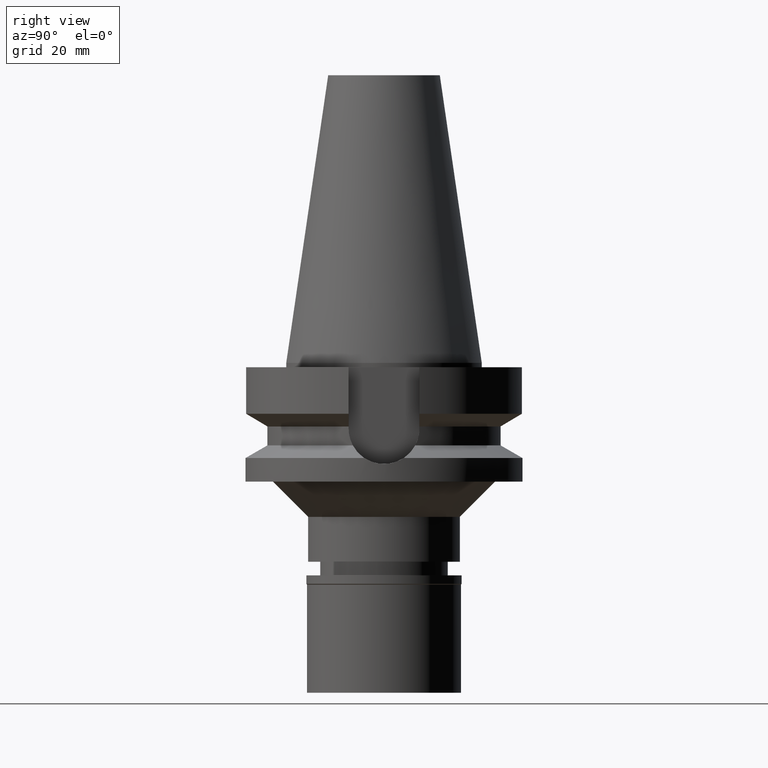
[diagram: clean part render]
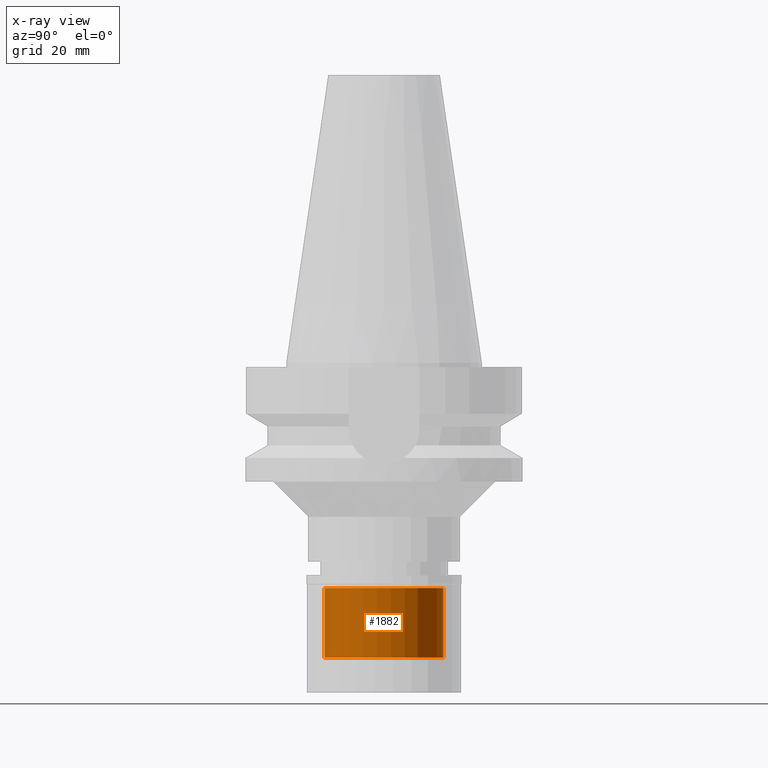
[diagram: x-ray — body ghosted, one internal face saturated and labeled with its STEP entity id]
A machine part, right view, then the same camera in x-ray: the body is ghosted and one INTERNAL B-rep face — a face not visible from any outside direction — is saturated and labeled: STEP entity #1882.
In plain terms, the highlighted cylindrical surface (partial cylindrical patch) has radius 13.5 mm, axis along (0, 0, -1).
Its self-contained STEP definition (entity closure, byte-faithful):
#5 = ORIENTED_EDGE ( 'NONE', *, *, #1690, .T. ) ;
#86 = CARTESIAN_POINT ( 'NONE',  ( 0.0000000000000000000, -13.50000000000000000, -2.899999999999999911 ) ) ;
#154 = CARTESIAN_POINT ( 'NONE',  ( 0.0000000000000000000, 0.0000000000000000000, -2.899999999999999911 ) ) ;
#224 = EDGE_LOOP ( 'NONE', ( #1529, #2444, #5, #2929 ) ) ;
#333 = DIRECTION ( 'NONE',  ( 0.0000000000000000000, 0.0000000000000000000, 1.000000000000000000 ) ) ;
#349 = VECTOR ( 'NONE', #2358, 1000.000000000000000 ) ;
#395 = AXIS2_PLACEMENT_3D ( 'NONE', #1076, #1961, #1731 ) ;
#477 = CARTESIAN_POINT ( 'NONE',  ( 0.0000000000000000000, -13.50000000000000000, -18.70000000000000284 ) ) ;
#570 = CARTESIAN_POINT ( 'NONE',  ( 0.0000000000000000000, 13.50000000000000000, -18.70000000000000284 ) ) ;
#596 = VERTEX_POINT ( 'NONE', #1980 ) ;
#1028 = CARTESIAN_POINT ( 'NONE',  ( 0.0000000000000000000, -13.50000000000000000, -18.70000000000000284 ) ) ;
#1038 = VECTOR ( 'NONE', #333, 1000.000000000000000 ) ;
#1039 = DIRECTION ( 'NONE',  ( 0.0000000000000000000, -1.000000000000000000, 0.0000000000000000000 ) ) ;
#1076 = CARTESIAN_POINT ( 'NONE',  ( 0.0000000000000000000, 0.0000000000000000000, -18.70000000000000284 ) ) ;
#1172 = FACE_OUTER_BOUND ( 'NONE', #224, .T. ) ;
#1279 = CARTESIAN_POINT ( 'NONE',  ( 0.0000000000000000000, 13.50000000000000000, -2.899999999999999911 ) ) ;
#1468 = LINE ( 'NONE', #570, #1038 ) ;
#1510 = CIRCLE ( 'NONE', #395, 13.50000000000000000 ) ;
#1529 = ORIENTED_EDGE ( 'NONE', *, *, #1767, .T. ) ;
#1553 = EDGE_CURVE ( 'NONE', #2651, #2466, #2635, .T. ) ;
#1690 = EDGE_CURVE ( 'NONE', #2466, #2584, #2696, .T. ) ;
#1731 = DIRECTION ( 'NONE',  ( 0.0000000000000000000, 1.000000000000000000, 0.0000000000000000000 ) ) ;
#1767 = EDGE_CURVE ( 'NONE', #596, #2651, #1510, .T. ) ;
#1882 = ADVANCED_FACE ( 'NONE', ( #1172 ), #2087, .F. ) ;
#1961 = DIRECTION ( 'NONE',  ( 0.0000000000000000000, 0.0000000000000000000, -1.000000000000000000 ) ) ;
#1980 = CARTESIAN_POINT ( 'NONE',  ( 0.0000000000000000000, 13.50000000000000000, -18.70000000000000284 ) ) ;
#2031 = DIRECTION ( 'NONE',  ( 0.0000000000000000000, -1.000000000000000000, 0.0000000000000000000 ) ) ;
#2087 = CYLINDRICAL_SURFACE ( 'NONE', #2487, 13.50000000000000000 ) ;
#2258 = DIRECTION ( 'NONE',  ( 0.0000000000000000000, 0.0000000000000000000, -1.000000000000000000 ) ) ;
#2293 = AXIS2_PLACEMENT_3D ( 'NONE', #154, #2447, #1039 ) ;
#2358 = DIRECTION ( 'NONE',  ( 0.0000000000000000000, 0.0000000000000000000, 1.000000000000000000 ) ) ;
#2444 = ORIENTED_EDGE ( 'NONE', *, *, #1553, .T. ) ;
#2447 = DIRECTION ( 'NONE',  ( 0.0000000000000000000, 0.0000000000000000000, 1.000000000000000000 ) ) ;
#2466 = VERTEX_POINT ( 'NONE', #86 ) ;
#2487 = AXIS2_PLACEMENT_3D ( 'NONE', #3013, #2258, #2031 ) ;
#2497 = EDGE_CURVE ( 'NONE', #596, #2584, #1468, .T. ) ;
#2584 = VERTEX_POINT ( 'NONE', #1279 ) ;
#2635 = LINE ( 'NONE', #1028, #349 ) ;
#2651 = VERTEX_POINT ( 'NONE', #477 ) ;
#2696 = CIRCLE ( 'NONE', #2293, 13.50000000000000000 ) ;
#2929 = ORIENTED_EDGE ( 'NONE', *, *, #2497, .F. ) ;
#3013 = CARTESIAN_POINT ( 'NONE',  ( 0.0000000000000000000, 0.0000000000000000000, 0.0000000000000000000 ) ) ;